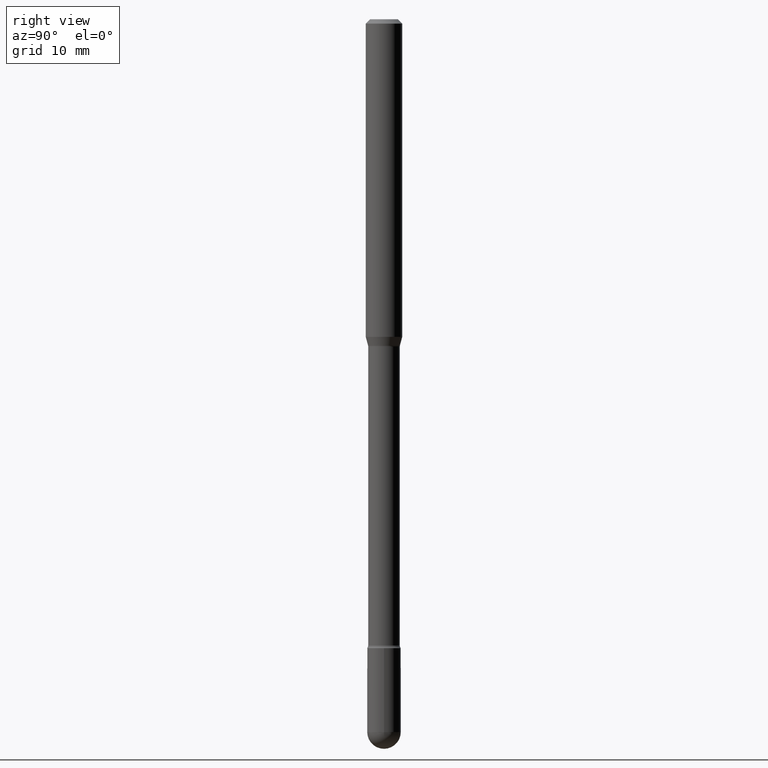
[diagram: clean part render]
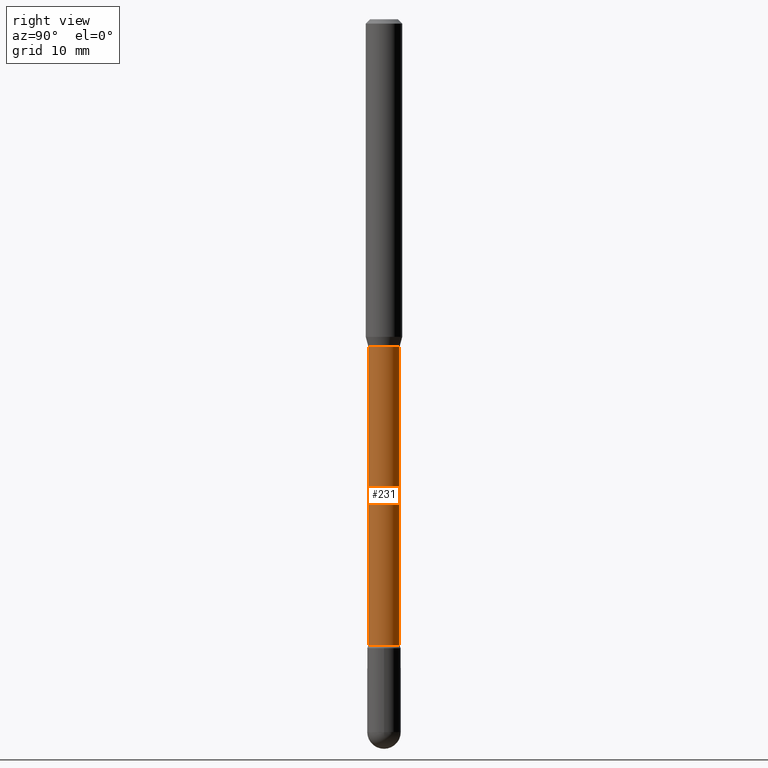
[diagram: same view with one face highlighted and labeled with its STEP entity id]
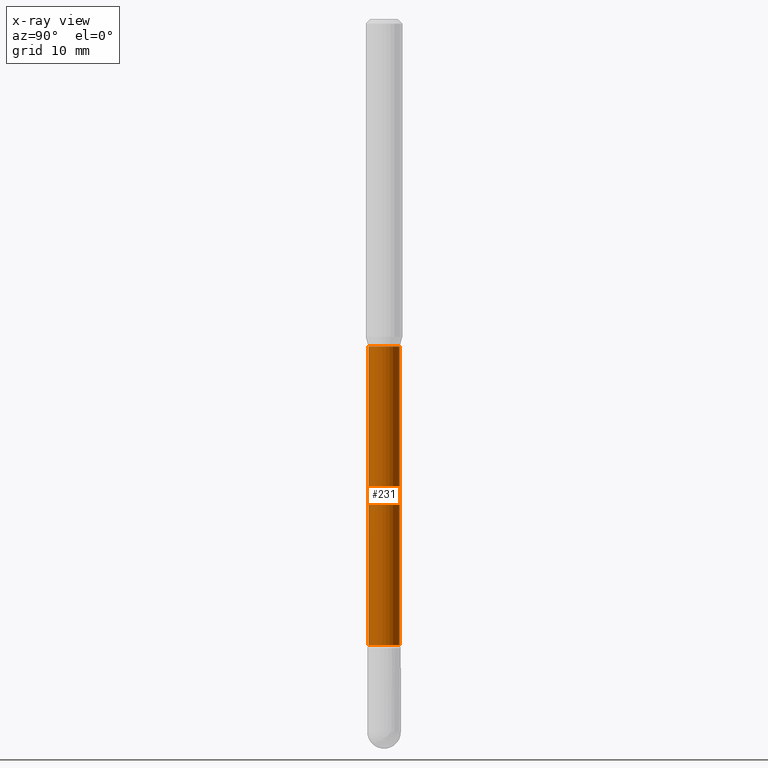
[diagram: x-ray of the same camera — body ghosted, the highlighted face saturated]
A machine part, right view. The second image highlights one B-rep face of the part: STEP entity #231.
The next image is the same camera in x-ray: the body ghosted, the highlighted face saturated — about 0% of this face is hidden behind the body in this view.
In plain terms, the highlighted cylindrical surface (edge-blend (fillet) strip) has radius 1.3729 mm, axis along (-0, 0, 1).
Its self-contained STEP definition (entity closure, byte-faithful):
#5 = DIRECTION ( 'NONE',  ( -2.445539240317163819E-29, 3.491380473157220392E-15, 1.000000000000000000 ) ) ;
#27 = ORIENTED_EDGE ( 'NONE', *, *, #509, .F. ) ;
#53 = LINE ( 'NONE', #128, #338 ) ;
#68 = VERTEX_POINT ( 'NONE', #430 ) ;
#69 = DIRECTION ( 'NONE',  ( -6.982962677686265922E-15, -1.000000000000000000, 3.491380473157220392E-15 ) ) ;
#104 = FACE_OUTER_BOUND ( 'NONE', #233, .T. ) ;
#109 = AXIS2_PLACEMENT_3D ( 'NONE', #397, #320, #220 ) ;
#112 = CIRCLE ( 'NONE', #109, 0.05405000000000011878 ) ;
#128 = CARTESIAN_POINT ( 'NONE',  ( 3.840483486783346000E-16, 0.05405000000000007021, 2.893642843170980533E-16 ) ) ;
#129 = VECTOR ( 'NONE', #5, 39.37007874015748143 ) ;
#151 = DIRECTION ( 'NONE',  ( -2.445539240317163819E-29, 3.491380473157220786E-15, 1.000000000000000000 ) ) ;
#154 = CARTESIAN_POINT ( 'NONE',  ( -3.774291327288910583E-16, -0.05405000000000760585, -2.145429341715430205 ) ) ;
#159 = CARTESIAN_POINT ( 'NONE',  ( -3.774291327289153158E-16, -0.05405000000000392824, -1.121974787463811074 ) ) ;
#160 = LINE ( 'NONE', #309, #129 ) ;
#170 = EDGE_CURVE ( 'NONE', #528, #68, #53, .T. ) ;
#174 = EDGE_CURVE ( 'NONE', #262, #528, #112, .T. ) ;
#199 = DIRECTION ( 'NONE',  ( -6.982962677686265922E-15, -1.000000000000000000, 2.527148930309216366E-15 ) ) ;
#220 = DIRECTION ( 'NONE',  ( -6.982962677686265922E-15, -1.000000000000000000, 5.054297860618422477E-15 ) ) ;
#231 = ADVANCED_FACE ( 'NONE', ( #104 ), #454, .T. ) ;
#233 = EDGE_LOOP ( 'NONE', ( #441, #480, #487, #27 ) ) ;
#242 = DIRECTION ( 'NONE',  ( -2.445539240317163819E-29, 3.491380473157220786E-15, 1.000000000000000000 ) ) ;
#262 = VERTEX_POINT ( 'NONE', #154 ) ;
#280 = AXIS2_PLACEMENT_3D ( 'NONE', #499, #151, #199 ) ;
#285 = EDGE_CURVE ( 'NONE', #498, #68, #469, .T. ) ;
#293 = CARTESIAN_POINT ( 'NONE',  ( -1.169113584055446105E-44, 1.669184350826100908E-30, 4.780733988912460139E-16 ) ) ;
#309 = CARTESIAN_POINT ( 'NONE',  ( -3.774291327289431725E-16, -0.05405000000000007021, 6.667825134653940731E-16 ) ) ;
#320 = DIRECTION ( 'NONE',  ( -2.445539240317163819E-29, 3.491380473157220786E-15, 1.000000000000000000 ) ) ;
#338 = VECTOR ( 'NONE', #404, 39.37007874015748143 ) ;
#358 = AXIS2_PLACEMENT_3D ( 'NONE', #293, #242, #69 ) ;
#397 = CARTESIAN_POINT ( 'NONE',  ( 5.246731642492907639E-29, -7.490510110203804866E-15, -2.145429341715430649 ) ) ;
#404 = DIRECTION ( 'NONE',  ( -2.445539240317163819E-29, 3.491380473157220392E-15, 1.000000000000000000 ) ) ;
#430 = CARTESIAN_POINT ( 'NONE',  ( 3.840483486783871086E-16, 0.05404999999999610116, -1.121974787463811296 ) ) ;
#441 = ORIENTED_EDGE ( 'NONE', *, *, #174, .T. ) ;
#454 = CYLINDRICAL_SURFACE ( 'NONE', #358, 0.05405000000000007021 ) ;
#469 = CIRCLE ( 'NONE', #280, 0.05405000000000000776 ) ;
#480 = ORIENTED_EDGE ( 'NONE', *, *, #170, .T. ) ;
#482 = CARTESIAN_POINT ( 'NONE',  ( 3.963052108702489167E-16, 0.05404999999999263172, -2.145429341715431093 ) ) ;
#487 = ORIENTED_EDGE ( 'NONE', *, *, #285, .F. ) ;
#498 = VERTEX_POINT ( 'NONE', #159 ) ;
#499 = CARTESIAN_POINT ( 'NONE',  ( 2.743833369389259815E-29, -3.917240864325872967E-15, -1.121974787463811074 ) ) ;
#509 = EDGE_CURVE ( 'NONE', #262, #498, #160, .T. ) ;
#528 = VERTEX_POINT ( 'NONE', #482 ) ;